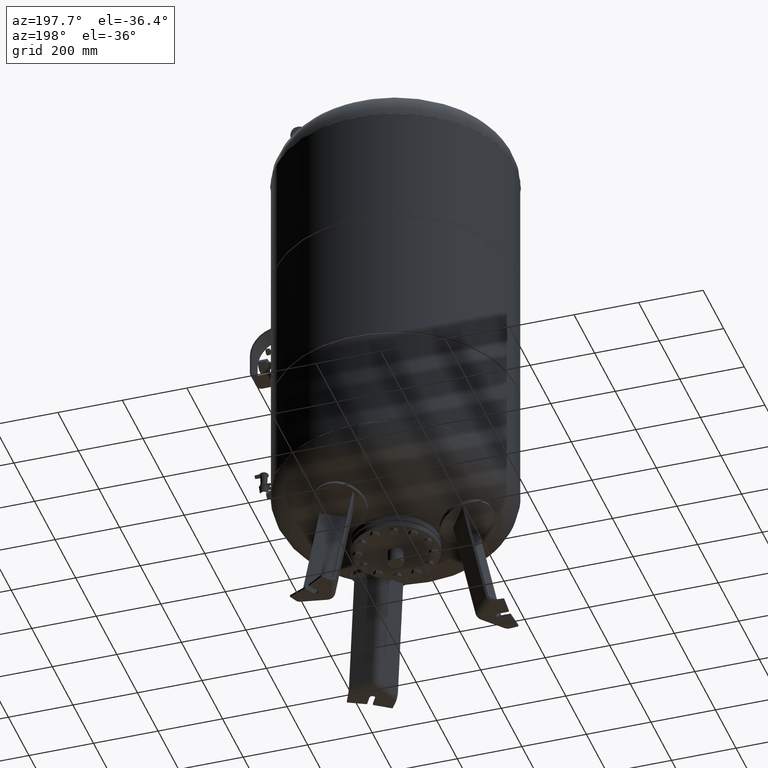
[diagram: clean part render]
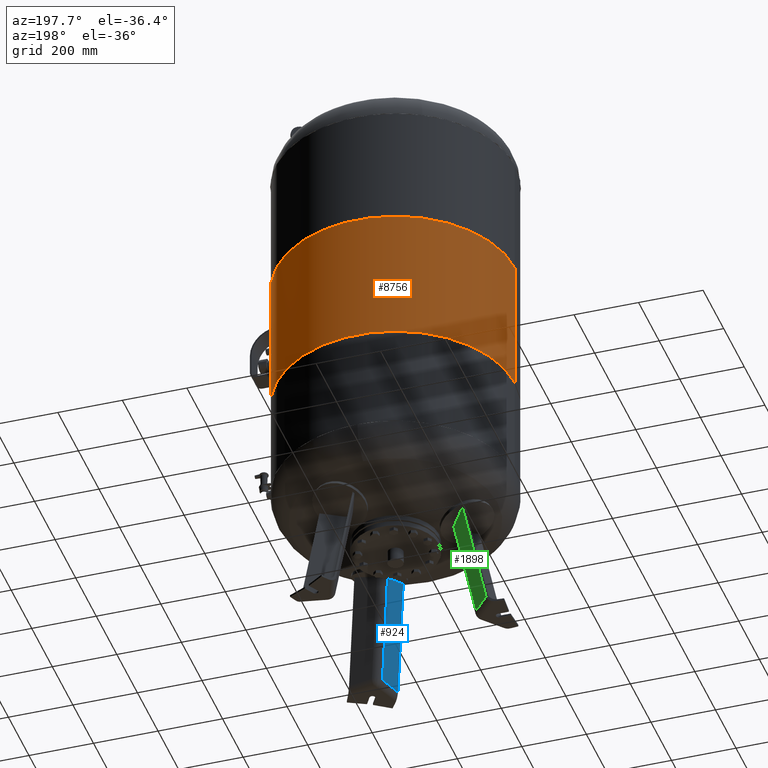
[diagram: same view with three faces highlighted in distinct colors, each labeled with its STEP entity id]
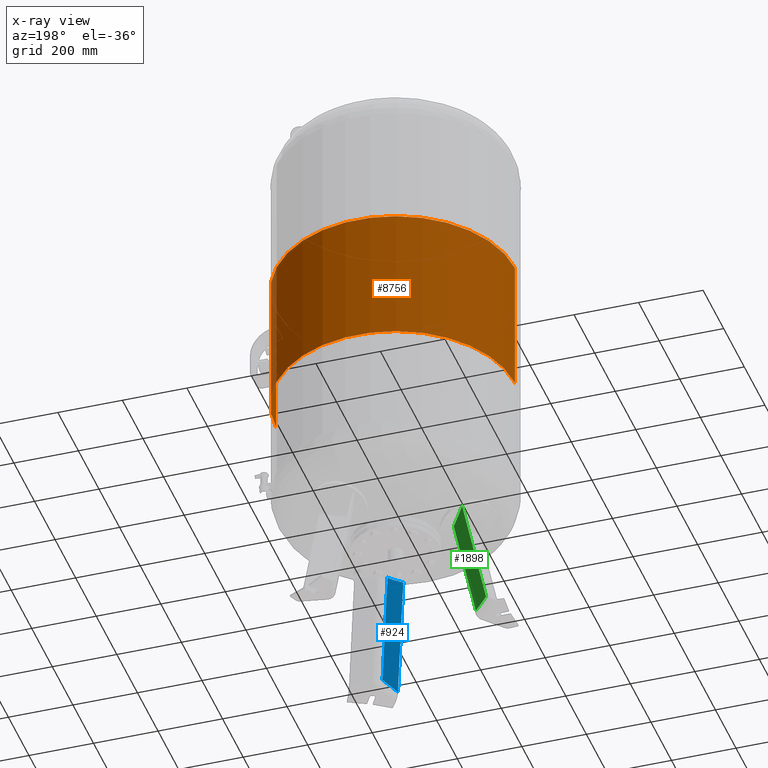
[diagram: x-ray of the same camera — body ghosted, the three highlighted faces saturated]
A machine part, auxiliary view with three faces highlighted in distinct colors.
The next image is the same camera in x-ray (body ghosted, the three faces saturated) — at least one of them is partly hidden behind the body in this view.
Their STEP definitions:

[orange] entity #8756 — the highlighted cylindrical surface (partial cylindrical patch) has radius 370 mm, axis along (0, 0, 1).
#8556=CARTESIAN_POINT('',(369.999999999999720,0.0,1263.666666666666500));
#8557=VERTEX_POINT('',#8556);
#8558=CARTESIAN_POINT('',(370.000000000002610,0.0,842.104553026880580));
#8559=VERTEX_POINT('',#8558);
#8560=CARTESIAN_POINT('',(369.999999999999720,0.0,1263.666666666666500));
#8561=DIRECTION('',(0.0,0.0,-1.0));
#8562=VECTOR('',#8561,421.562113639785930);
#8563=LINE('',#8560,#8562);
#8564=EDGE_CURVE('',#8557,#8559,#8563,.T.);
#8566=CARTESIAN_POINT('',(-370.000000000001140,-4.531044E-014,1263.666666666666500));
#8567=VERTEX_POINT('',#8566);
#8575=CARTESIAN_POINT('',(-370.000000000001140,-4.531044E-014,842.104553026880470));
#8576=VERTEX_POINT('',#8575);
#8577=CARTESIAN_POINT('',(-370.000000000001140,-4.531044E-014,1263.666666666666500));
#8578=DIRECTION('',(0.0,0.0,-1.0));
#8579=VECTOR('',#8578,421.562113639786050);
#8580=LINE('',#8577,#8579);
#8581=EDGE_CURVE('',#8567,#8576,#8580,.T.);
#8724=CARTESIAN_POINT('',(-6.971199E-015,0.0,842.104553026880470));
#8725=DIRECTION('',(0.0,0.0,1.0));
#8726=DIRECTION('',(1.0,0.0,0.0));
#8727=AXIS2_PLACEMENT_3D('',#8724,#8725,#8726);
#8728=CIRCLE('',#8727,370.000000000002610);
#8729=EDGE_CURVE('',#8559,#8576,#8728,.T.);
#8739=CARTESIAN_POINT('',(-7.289513E-016,0.0,1052.885609846773600));
#8740=DIRECTION('',(2.961484E-017,0.0,1.0));
#8741=DIRECTION('',(1.0,0.0,0.0));
#8742=AXIS2_PLACEMENT_3D('',#8739,#8740,#8741);
#8743=CYLINDRICAL_SURFACE('',#8742,370.000000000001140);
#8744=ORIENTED_EDGE('',*,*,#8564,.T.);
#8745=ORIENTED_EDGE('',*,*,#8729,.T.);
#8746=ORIENTED_EDGE('',*,*,#8581,.F.);
#8747=CARTESIAN_POINT('',(5.513297E-015,0.0,1263.666666666666500));
#8748=DIRECTION('',(0.0,0.0,1.0));
#8749=DIRECTION('',(1.0,0.0,0.0));
#8750=AXIS2_PLACEMENT_3D('',#8747,#8748,#8749);
#8751=CIRCLE('',#8750,369.999999999999720);
#8752=EDGE_CURVE('',#8557,#8567,#8751,.T.);
#8753=ORIENTED_EDGE('',*,*,#8752,.F.);
#8754=EDGE_LOOP('',(#8744,#8745,#8746,#8753));
#8755=FACE_OUTER_BOUND('',#8754,.T.);
#8756=ADVANCED_FACE('',(#8755),#8743,.T.);

[blue] entity #924 — the highlighted planar face has unit normal (-0.9325, 0.3243, -0.1588).
#296=CARTESIAN_POINT('',(78.725552630423081,-168.629558662939620,345.982061508122970));
#297=VERTEX_POINT('',#296);
#313=CARTESIAN_POINT('',(51.307770812481792,-235.867665870318040,369.683830982884900));
#314=VERTEX_POINT('',#313);
#315=CARTESIAN_POINT('',(51.307770812481792,-235.867665870318040,369.683830982884900));
#316=CARTESIAN_POINT('',(56.459906333784943,-223.507500250926940,364.669037481009180));
#317=CARTESIAN_POINT('',(61.570850509133408,-211.101980844404470,359.988747504562130));
#318=CARTESIAN_POINT('',(69.358966146401386,-191.964173633379030,353.334982197884130));
#319=CARTESIAN_POINT('',(72.082256563316150,-185.226738944398020,351.101192125903880));
#320=CARTESIAN_POINT('',(76.102127684768078,-175.206603742220240,347.956934926011460));
#321=CARTESIAN_POINT('',(77.416967662112413,-171.916953450706390,346.953435462919910));
#322=CARTESIAN_POINT('',(78.725552630423081,-168.629558662939620,345.982061508122970));
#323=B_SPLINE_CURVE_WITH_KNOTS('',3,(#315,#316,#317,#318,#319,#320,#321,#322),.UNSPECIFIED.,.F.,.U.,(4,2,2,4),(536.762478861198470,540.755951889067660,542.927906845961390,543.990518214376830),.UNSPECIFIED.);
#324=EDGE_CURVE('',#314,#297,#323,.T.);
#405=CARTESIAN_POINT('',(88.362106057392197,-300.047657155193060,21.029948423057292));
#406=VERTEX_POINT('',#405);
#414=CARTESIAN_POINT('',(113.260904562808070,-228.446542867102470,21.029948423057292));
#415=VERTEX_POINT('',#414);
#416=CARTESIAN_POINT('',(88.362106057392197,-300.047657155193060,21.029948423057292));
#417=DIRECTION('',(0.328450760190054,0.944521094592691,0.0));
#418=VECTOR('',#417,75.806792138366546);
#419=LINE('',#416,#418);
#420=EDGE_CURVE('',#406,#415,#419,.T.);
#895=CARTESIAN_POINT('',(113.260904562808070,-228.446542867102470,21.029948423057292));
#896=DIRECTION('',(-0.103955845408880,0.180056805991956,0.978147600733805));
#897=VECTOR('',#896,332.211736594034330);
#898=LINE('',#895,#897);
#899=EDGE_CURVE('',#415,#297,#898,.T.);
#908=CARTESIAN_POINT('',(97.795923400639992,-316.387508103022700,-67.735293817669458));
#909=DIRECTION('',(-0.932535537409926,0.324282864533177,-0.158802063077709));
#910=DIRECTION('',(0.103955845408880,-0.180056805991956,-0.978147600733806));
#911=AXIS2_PLACEMENT_3D('',#908,#909,#910);
#912=PLANE('',#911);
#913=CARTESIAN_POINT('',(88.362106057392197,-300.047657155193060,21.029948423057292));
#914=DIRECTION('',(-0.103955845408880,0.180056805991956,0.978147600733806));
#915=VECTOR('',#914,356.443017698216240);
#916=LINE('',#913,#915);
#917=EDGE_CURVE('',#406,#314,#916,.T.);
#918=ORIENTED_EDGE('',*,*,#917,.T.);
#919=ORIENTED_EDGE('',*,*,#324,.T.);
#920=ORIENTED_EDGE('',*,*,#899,.F.);
#921=ORIENTED_EDGE('',*,*,#420,.F.);
#922=EDGE_LOOP('',(#918,#919,#920,#921));
#923=FACE_OUTER_BOUND('',#922,.T.);
#924=ADVANCED_FACE('',(#923),#912,.T.);

[green] entity #1898 — the highlighted planar face has unit normal (0.7471, 0.6455, -0.1588).
#1270=CARTESIAN_POINT('',(-185.400257946275500,16.136450826554487,345.982061508122970));
#1271=VERTEX_POINT('',#1270);
#1287=CARTESIAN_POINT('',(-229.921275981276120,73.499999999999957,369.683830982884900));
#1288=VERTEX_POINT('',#1287);
#1289=CARTESIAN_POINT('',(-229.921275981276120,73.499999999999957,369.683830982884900));
#1290=CARTESIAN_POINT('',(-221.793126320551980,62.858036945115693,364.669037481009180));
#1291=CARTESIAN_POINT('',(-213.605103455036930,52.229069748678576,359.988747504562130));
#1292=CARTESIAN_POINT('',(-200.925334056193860,35.915460153680954,353.334982197884130));
#1293=CARTESIAN_POINT('',(-196.452189667655180,30.188304126259542,351.101192125903880));
#1294=CARTESIAN_POINT('',(-189.784433593940460,21.696926014053847,347.956934926011460));
#1295=CARTESIAN_POINT('',(-187.592932860594740,18.913416046005359,346.953435462919910));
#1296=CARTESIAN_POINT('',(-185.400257946275500,16.136450826554487,345.982061508122970));
#1297=B_SPLINE_CURVE_WITH_KNOTS('',3,(#1289,#1290,#1291,#1292,#1293,#1294,#1295,#1296),.UNSPECIFIED.,.F.,.U.,(4,2,2,4),(536.762478861198470,540.755951889067660,542.927906845961390,543.990518214376830),.UNSPECIFIED.);
#1298=EDGE_CURVE('',#1288,#1271,#1297,.T.);
#1379=CARTESIAN_POINT('',(-304.029946471096990,73.500000000000000,21.029948423057292));
#1380=VERTEX_POINT('',#1379);
#1388=CARTESIAN_POINT('',(-254.470961811045530,16.136450826554530,21.029948423057292));
#1389=VERTEX_POINT('',#1388);
#1390=CARTESIAN_POINT('',(-304.029946471096990,73.500000000000000,21.029948423057292));
#1391=DIRECTION('',(0.653753882232529,-0.756707249513243,0.0));
#1392=VECTOR('',#1391,75.806792138366546);
#1393=LINE('',#1390,#1392);
#1394=EDGE_CURVE('',#1380,#1389,#1393,.T.);
#1869=CARTESIAN_POINT('',(-254.470961811045530,16.136450826554530,21.029948423057292));
#1870=DIRECTION('',(0.207911690817760,-1.283295E-016,0.978147600733805));
#1871=VECTOR('',#1870,332.211736594034330);
#1872=LINE('',#1869,#1871);
#1873=EDGE_CURVE('',#1389,#1271,#1872,.T.);
#1882=CARTESIAN_POINT('',(-322.897581157592580,73.500000000000000,-67.735293817669458));
#1883=DIRECTION('',(0.747104967402683,0.645458033062181,-0.158802063077709));
#1884=DIRECTION('',(-0.207911690817760,1.706861E-016,-0.978147600733806));
#1885=AXIS2_PLACEMENT_3D('',#1882,#1883,#1884);
#1886=PLANE('',#1885);
#1887=CARTESIAN_POINT('',(-304.029946471096990,73.500000000000000,21.029948423057292));
#1888=DIRECTION('',(0.207911690817760,-1.196056E-016,0.978147600733806));
#1889=VECTOR('',#1888,356.443017698216240);
#1890=LINE('',#1887,#1889);
#1891=EDGE_CURVE('',#1380,#1288,#1890,.T.);
#1892=ORIENTED_EDGE('',*,*,#1891,.T.);
#1893=ORIENTED_EDGE('',*,*,#1298,.T.);
#1894=ORIENTED_EDGE('',*,*,#1873,.F.);
#1895=ORIENTED_EDGE('',*,*,#1394,.F.);
#1896=EDGE_LOOP('',(#1892,#1893,#1894,#1895));
#1897=FACE_OUTER_BOUND('',#1896,.T.);
#1898=ADVANCED_FACE('',(#1897),#1886,.T.);